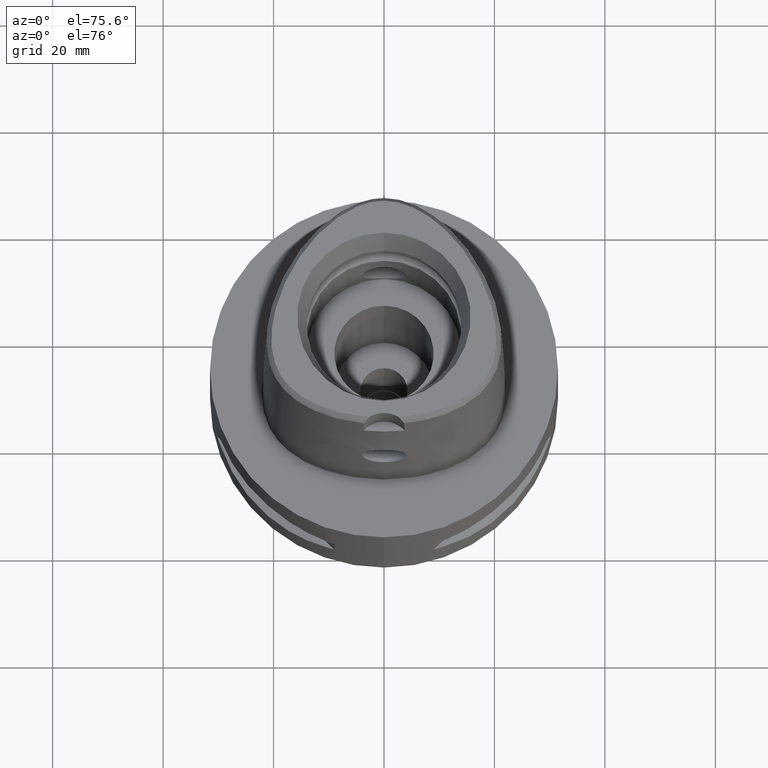
[diagram: clean part render]
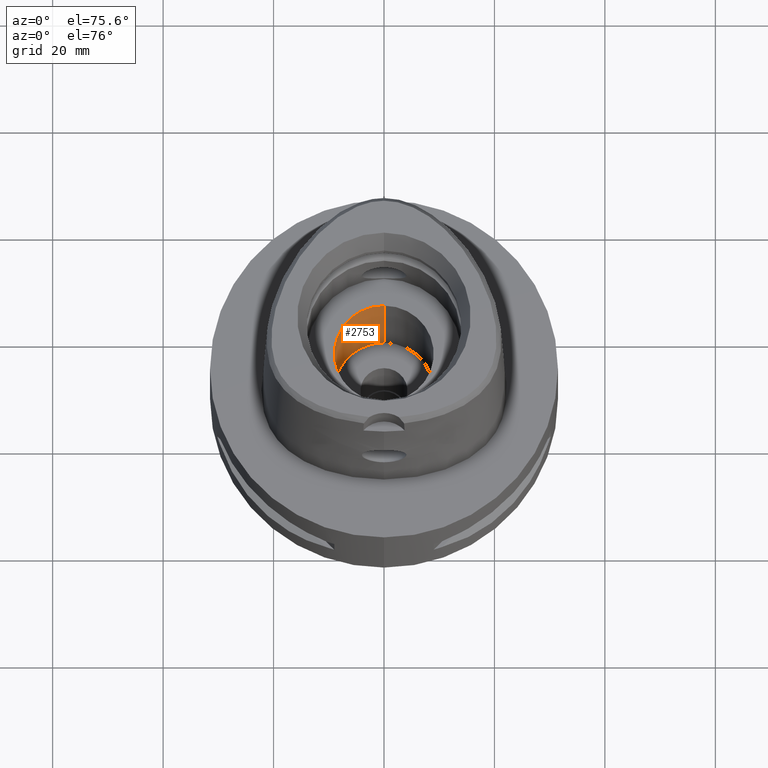
[diagram: same view with one face highlighted and labeled with its STEP entity id]
A machine part, auxiliary view. The second image highlights one B-rep face of the part: STEP entity #2753.
In plain terms, the highlighted cylindrical surface (partial cylindrical patch) has radius 9 mm, axis along (0, 0, -1).
Its self-contained STEP definition (entity closure, byte-faithful):
#779=CARTESIAN_POINT('',(0.E0,0.E0,-1.6E1));
#780=DIRECTION('',(0.E0,0.E0,-1.E0));
#781=DIRECTION('',(0.E0,-1.E0,0.E0));
#782=AXIS2_PLACEMENT_3D('',#779,#780,#781);
#811=DIRECTION('',(0.E0,0.E0,-1.E0));
#812=VECTOR('',#811,2.7E1);
#813=CARTESIAN_POINT('',(0.E0,-9.E0,1.1E1));
#814=LINE('',#813,#812);
#818=DIRECTION('',(0.E0,0.E0,1.E0));
#819=VECTOR('',#818,2.7E1);
#820=CARTESIAN_POINT('',(0.E0,9.E0,-1.6E1));
#821=LINE('',#820,#819);
#841=CARTESIAN_POINT('',(0.E0,0.E0,1.1E1));
#842=DIRECTION('',(0.E0,0.E0,1.E0));
#843=DIRECTION('',(0.E0,1.E0,0.E0));
#844=AXIS2_PLACEMENT_3D('',#841,#842,#843);
#1644=CARTESIAN_POINT('',(0.E0,-9.E0,-1.6E1));
#1645=CARTESIAN_POINT('',(0.E0,9.E0,-1.6E1));
#1646=VERTEX_POINT('',#1644);
#1647=VERTEX_POINT('',#1645);
#1648=CARTESIAN_POINT('',(0.E0,9.E0,1.1E1));
#1649=VERTEX_POINT('',#1648);
#1650=CARTESIAN_POINT('',(0.E0,-9.E0,1.1E1));
#1651=VERTEX_POINT('',#1650);
#2739=CARTESIAN_POINT('',(0.E0,0.E0,3.99E1));
#2740=DIRECTION('',(0.E0,0.E0,-1.E0));
#2741=DIRECTION('',(0.E0,-1.E0,0.E0));
#2742=AXIS2_PLACEMENT_3D('',#2739,#2740,#2741);
#2743=CYLINDRICAL_SURFACE('',#2742,9.E0);
#2745=ORIENTED_EDGE('',*,*,#2744,.F.);
#2746=ORIENTED_EDGE('',*,*,#2728,.F.);
#2748=ORIENTED_EDGE('',*,*,#2747,.F.);
#2750=ORIENTED_EDGE('',*,*,#2749,.F.);
#2751=EDGE_LOOP('',(#2745,#2746,#2748,#2750));
#2752=FACE_OUTER_BOUND('',#2751,.F.);
#783=CIRCLE('',#782,9.E0);
#845=CIRCLE('',#844,9.E0);
#2728=EDGE_CURVE('',#1646,#1647,#783,.T.);
#2744=EDGE_CURVE('',#1647,#1649,#821,.T.);
#2747=EDGE_CURVE('',#1651,#1646,#814,.T.);
#2749=EDGE_CURVE('',#1649,#1651,#845,.T.);
#2753=ADVANCED_FACE('',(#2752),#2743,.F.);